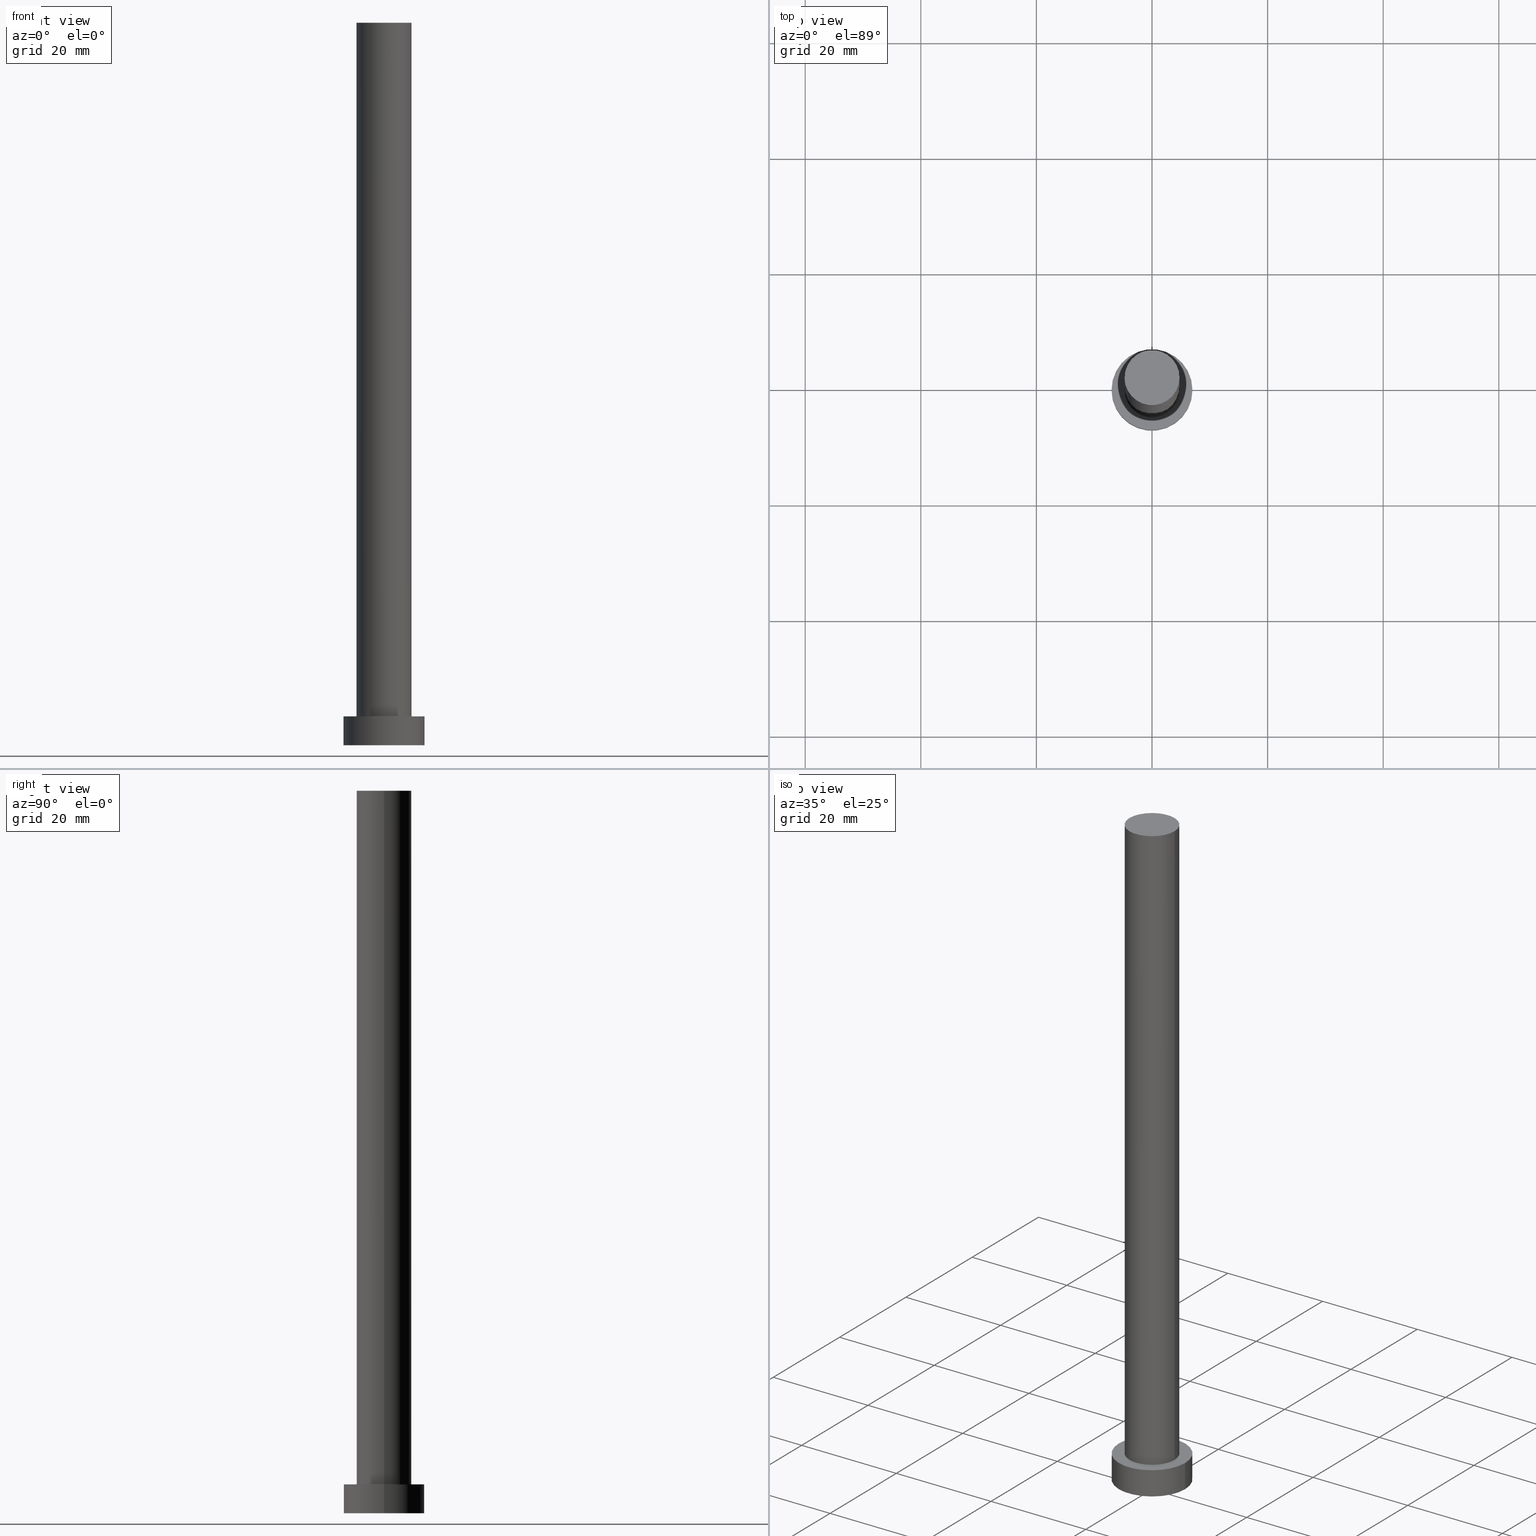
[diagram: canonical four-view strip — front | top / right | iso, engineering-drawing reading convention]
A machine part, canonical four-view strip (front | top / right | iso — engineering-drawing reading convention). The complete STEP part file that produces these views, byte-faithful:
ISO-10303-21;
HEADER;
FILE_DESCRIPTION (( 'STEP AP203' ),
    '1' );
FILE_NAME ('98ec.STEP',
    '2026-02-06T12:38:12',
    ( '' ),
    ( '' ),
    'SwSTEP 2.0',
    'SolidWorks 2019',
    '' );
FILE_SCHEMA (( 'CONFIG_CONTROL_DESIGN' ));
ENDSEC;

DATA;
#1 = CIRCLE ( 'NONE', #116, 7.000000000000000000 ) ;
#2 = DIRECTION ( 'NONE',  ( 0.000000000000000000, 0.000000000000000000, 1.000000000000000000 ) ) ;
#3 = PERSON_AND_ORGANIZATION ( #102, #83 ) ;
#4 = CYLINDRICAL_SURFACE ( 'NONE', #186, 4.750000000000000888 ) ;
#5 = PERSON_AND_ORGANIZATION ( #102, #83 ) ;
#6 = CC_DESIGN_APPROVAL ( #159, ( #8 ) ) ;
#7 = AXIS2_PLACEMENT_3D ( 'NONE', #196, #38, #137 ) ;
#8 = PRODUCT_DEFINITION_FORMATION_WITH_SPECIFIED_SOURCE ( 'LIBOVOLN�', '', #121, .NOT_KNOWN. ) ;
#9 = LOCAL_TIME ( 13, 38, 12.00000000000000000, #39 ) ;
#10 = ORIENTED_EDGE ( 'NONE', *, *, #77, .T. ) ;
#11 = SECURITY_CLASSIFICATION ( '', '', #78 ) ;
#12 = ORIENTED_EDGE ( 'NONE', *, *, #132, .F. ) ;
#13 = DIRECTION ( 'NONE',  ( -0.000000000000000000, -0.000000000000000000, -1.000000000000000000 ) ) ;
#14 = EDGE_LOOP ( 'NONE', ( #127, #221, #17, #163 ) ) ;
#15 = COORDINATED_UNIVERSAL_TIME_OFFSET ( 1, 0, .AHEAD. ) ;
#16 = EDGE_CURVE ( 'NONE', #227, #106, #125, .T. ) ;
#17 = ORIENTED_EDGE ( 'NONE', *, *, #43, .T. ) ;
#18 = FACE_OUTER_BOUND ( 'NONE', #166, .T. ) ;
#19 = PERSON_AND_ORGANIZATION ( #102, #83 ) ;
#20 = LOCAL_TIME ( 13, 38, 12.00000000000000000, #143 ) ;
#21 = DIRECTION ( 'NONE',  ( -1.000000000000000000, 0.000000000000000000, 0.000000000000000000 ) ) ;
#22 = DATE_AND_TIME ( #152, #231 ) ;
#23 = CARTESIAN_POINT ( 'NONE',  ( 7.000000000000000000, 8.572527594031473190E-16, 5.000000000000000000 ) ) ;
#24 = FACE_OUTER_BOUND ( 'NONE', #124, .T. ) ;
#25 = EDGE_CURVE ( 'NONE', #224, #106, #225, .T. ) ;
#26 = AXIS2_PLACEMENT_3D ( 'NONE', #36, #89, #85 ) ;
#27 = EDGE_LOOP ( 'NONE', ( #12, #177 ) ) ;
#28 = DIRECTION ( 'NONE',  ( -0.000000000000000000, -0.000000000000000000, -1.000000000000000000 ) ) ;
#29 = ORIENTED_EDGE ( 'NONE', *, *, #43, .F. ) ;
#30 = FACE_OUTER_BOUND ( 'NONE', #53, .T. ) ;
#31 = APPROVAL_STATUS ( 'not_yet_approved' ) ;
#32 = EDGE_CURVE ( 'NONE', #55, #198, #82, .T. ) ;
#33 = DIRECTION ( 'NONE',  ( 0.000000000000000000, 0.000000000000000000, 1.000000000000000000 ) ) ;
#34 = CALENDAR_DATE ( 2026, 6, 2 ) ;
#35 = ORIENTED_EDGE ( 'NONE', *, *, #195, .F. ) ;
#36 = CARTESIAN_POINT ( 'NONE',  ( 0.000000000000000000, 0.000000000000000000, 5.000000000000000000 ) ) ;
#37 = CARTESIAN_POINT ( 'NONE',  ( 0.000000000000000000, 0.000000000000000000, 125.0000000000000000 ) ) ;
#38 = DIRECTION ( 'NONE',  ( 0.000000000000000000, 0.000000000000000000, 1.000000000000000000 ) ) ;
#39 = COORDINATED_UNIVERSAL_TIME_OFFSET ( 1, 0, .AHEAD. ) ;
#40 = CARTESIAN_POINT ( 'NONE',  ( -7.000000000000000000, 0.000000000000000000, 5.000000000000000000 ) ) ;
#41 = APPROVAL_ROLE ( '' ) ;
#42 = CARTESIAN_POINT ( 'NONE',  ( 0.000000000000000000, 0.000000000000000000, 0.000000000000000000 ) ) ;
#43 = EDGE_CURVE ( 'NONE', #106, #227, #1, .T. ) ;
#44 = APPROVAL_DATE_TIME ( #154, #159 ) ;
#45 = ADVANCED_FACE ( 'NONE', ( #30 ), #129, .T. ) ;
#46 = CIRCLE ( 'NONE', #208, 7.000000000000000000 ) ;
#47 = AXIS2_PLACEMENT_3D ( 'NONE', #115, #96, #62 ) ;
#48 = PRODUCT_DEFINITION_SHAPE ( 'NONE', 'NONE',  #218 ) ;
#49 = DIRECTION ( 'NONE',  ( 1.000000000000000000, 0.000000000000000000, 0.000000000000000000 ) ) ;
#50 = AXIS2_PLACEMENT_3D ( 'NONE', #59, #2, #232 ) ;
#51 = DIRECTION ( 'NONE',  ( 0.000000000000000000, 0.000000000000000000, 1.000000000000000000 ) ) ;
#52 = APPROVAL_STATUS ( 'not_yet_approved' ) ;
#53 = EDGE_LOOP ( 'NONE', ( #161, #35, #67, #170 ) ) ;
#54 = PERSON_AND_ORGANIZATION_ROLE ( 'classification_officer' ) ;
#55 = VERTEX_POINT ( 'NONE', #134 ) ;
#56 = VECTOR ( 'NONE', #28, 1000.000000000000000 ) ;
#57 = CARTESIAN_POINT ( 'NONE',  ( 7.000000000000000000, 8.572527594031473190E-16, 5.000000000000000000 ) ) ;
#58 = EDGE_CURVE ( 'NONE', #55, #178, #110, .T. ) ;
#59 = CARTESIAN_POINT ( 'NONE',  ( 0.000000000000000000, 0.000000000000000000, 5.000000000000000000 ) ) ;
#60 = MECHANICAL_CONTEXT ( 'NONE', #215, 'mechanical' ) ;
#61 = APPLICATION_PROTOCOL_DEFINITION ( 'international standard', 'config_control_design', 1994, #126 ) ;
#62 = DIRECTION ( 'NONE',  ( 1.000000000000000000, 0.000000000000000000, -0.000000000000000000 ) ) ;
#63 = DIRECTION ( 'NONE',  ( -0.000000000000000000, -0.000000000000000000, -1.000000000000000000 ) ) ;
#64 = DATE_AND_TIME ( #130, #20 ) ;
#65 =( LENGTH_UNIT ( ) NAMED_UNIT ( * ) SI_UNIT ( .MILLI., .METRE. ) );
#66 = CYLINDRICAL_SURFACE ( 'NONE', #26, 7.000000000000000000 ) ;
#67 = ORIENTED_EDGE ( 'NONE', *, *, #207, .T. ) ;
#68 = ADVANCED_FACE ( 'NONE', ( #184 ), #66, .T. ) ;
#69 = DIRECTION ( 'NONE',  ( 1.000000000000000000, 0.000000000000000000, 0.000000000000000000 ) ) ;
#70 = DIRECTION ( 'NONE',  ( 0.000000000000000000, 0.000000000000000000, 1.000000000000000000 ) ) ;
#71 = VERTEX_POINT ( 'NONE', #252 ) ;
#72 = APPLICATION_PROTOCOL_DEFINITION ( 'international standard', 'config_control_design', 1994, #215 ) ;
#73 = DIRECTION ( 'NONE',  ( 0.000000000000000000, 0.000000000000000000, 1.000000000000000000 ) ) ;
#74 = COORDINATED_UNIVERSAL_TIME_OFFSET ( 1, 0, .AHEAD. ) ;
#75 = CARTESIAN_POINT ( 'NONE',  ( 0.000000000000000000, 0.000000000000000000, 125.0000000000000000 ) ) ;
#76 = CALENDAR_DATE ( 2026, 6, 2 ) ;
#77 = EDGE_CURVE ( 'NONE', #198, #55, #142, .T. ) ;
#78 = SECURITY_CLASSIFICATION_LEVEL ( 'unclassified' ) ;
#79 = CARTESIAN_POINT ( 'NONE',  ( -4.750000000000000888, 0.000000000000000000, 5.000000000000000000 ) ) ;
#80 = CIRCLE ( 'NONE', #50, 7.000000000000000000 ) ;
#81 = APPROVAL ( #173, 'NEUR�EN�' ) ;
#82 = CIRCLE ( 'NONE', #149, 4.750000000000000888 ) ;
#83 = ORGANIZATION ( 'NEUR�EN�', 'NEUR�EN�', '' ) ;
#84 = ORIENTED_EDGE ( 'NONE', *, *, #32, .T. ) ;
#85 = DIRECTION ( 'NONE',  ( -1.000000000000000000, 0.000000000000000000, 0.000000000000000000 ) ) ;
#86 = EDGE_LOOP ( 'NONE', ( #103, #123, #229, #131 ) ) ;
#87 = CARTESIAN_POINT ( 'NONE',  ( 0.000000000000000000, 0.000000000000000000, 5.000000000000000000 ) ) ;
#88 = DATE_AND_TIME ( #239, #220 ) ;
#89 = DIRECTION ( 'NONE',  ( -0.000000000000000000, -0.000000000000000000, -1.000000000000000000 ) ) ;
#90 = VECTOR ( 'NONE', #180, 1000.000000000000000 ) ;
#91 = AXIS2_PLACEMENT_3D ( 'NONE', #119, #192, #236 ) ;
#92 = CARTESIAN_POINT ( 'NONE',  ( 0.000000000000000000, 0.000000000000000000, 125.0000000000000000 ) ) ;
#93 = CARTESIAN_POINT ( 'NONE',  ( 0.000000000000000000, 0.000000000000000000, 125.0000000000000000 ) ) ;
#94 = DIRECTION ( 'NONE',  ( 1.000000000000000000, 0.000000000000000000, -0.000000000000000000 ) ) ;
#95 = PERSON_AND_ORGANIZATION_ROLE ( 'design_supplier' ) ;
#96 = DIRECTION ( 'NONE',  ( 0.000000000000000000, 0.000000000000000000, 1.000000000000000000 ) ) ;
#97 = EDGE_CURVE ( 'NONE', #224, #182, #46, .T. ) ;
#98 = PERSON_AND_ORGANIZATION ( #102, #83 ) ;
#99 = PLANE ( 'NONE',  #111 ) ;
#100 = CIRCLE ( 'NONE', #244, 4.750000000000000888 ) ;
#101 = PLANE ( 'NONE',  #91 ) ;
#102 = PERSON ( 'NEUR�EN�', 'NEUR�EN�', 'NEUR�EN�', ('NEUR�EN�'), ('NEUR�EN�'), ('NEUR�EN�') ) ;
#103 = ORIENTED_EDGE ( 'NONE', *, *, #167, .F. ) ;
#104 = VECTOR ( 'NONE', #209, 1000.000000000000000 ) ;
#105 = CC_DESIGN_PERSON_AND_ORGANIZATION_ASSIGNMENT ( #98, #165, ( #218 ) ) ;
#106 = VERTEX_POINT ( 'NONE', #147 ) ;
#107 = CARTESIAN_POINT ( 'NONE',  ( 0.000000000000000000, 0.000000000000000000, 0.000000000000000000 ) ) ;
#108 = CARTESIAN_POINT ( 'NONE',  ( -4.750000000000000888, 0.000000000000000000, 125.0000000000000000 ) ) ;
#109 = PERSON_AND_ORGANIZATION ( #102, #83 ) ;
#110 = LINE ( 'NONE', #108, #104 ) ;
#111 = AXIS2_PLACEMENT_3D ( 'NONE', #42, #189, #94 ) ;
#112 = ORIENTED_EDGE ( 'NONE', *, *, #16, .F. ) ;
#113 = CC_DESIGN_PERSON_AND_ORGANIZATION_ASSIGNMENT ( #211, #54, ( #11 ) ) ;
#114 = CARTESIAN_POINT ( 'NONE',  ( -7.000000000000000000, 0.000000000000000000, 5.000000000000000000 ) ) ;
#115 = CARTESIAN_POINT ( 'NONE',  ( 0.000000000000000000, 0.000000000000000000, 125.0000000000000000 ) ) ;
#116 = AXIS2_PLACEMENT_3D ( 'NONE', #203, #33, #255 ) ;
#117 = CC_DESIGN_DATE_AND_TIME_ASSIGNMENT ( #22, #204, ( #11 ) ) ;
#118 = FACE_OUTER_BOUND ( 'NONE', #86, .T. ) ;
#119 = CARTESIAN_POINT ( 'NONE',  ( 0.000000000000000000, 0.000000000000000000, 5.000000000000000000 ) ) ;
#120 = APPROVAL_DATE_TIME ( #64, #181 ) ;
#121 = PRODUCT ( '98ec', '98ec', '', ( #60 ) ) ;
#122 = PRODUCT_RELATED_PRODUCT_CATEGORY ( 'detail', '', ( #121 ) ) ;
#123 = ORIENTED_EDGE ( 'NONE', *, *, #32, .F. ) ;
#124 = EDGE_LOOP ( 'NONE', ( #84, #10 ) ) ;
#125 = CIRCLE ( 'NONE', #158, 7.000000000000000000 ) ;
#126 = APPLICATION_CONTEXT ( 'configuration controlled 3d designs of mechanical parts and assemblies' ) ;
#127 = ORIENTED_EDGE ( 'NONE', *, *, #97, .F. ) ;
#128 = APPROVAL_PERSON_ORGANIZATION ( #250, #181, #41 ) ;
#129 = CYLINDRICAL_SURFACE ( 'NONE', #251, 7.000000000000000000 ) ;
#130 = CALENDAR_DATE ( 2026, 6, 2 ) ;
#131 = ORIENTED_EDGE ( 'NONE', *, *, #132, .T. ) ;
#132 = EDGE_CURVE ( 'NONE', #178, #71, #100, .T. ) ;
#133 = ORIENTED_EDGE ( 'NONE', *, *, #167, .T. ) ;
#134 = CARTESIAN_POINT ( 'NONE',  ( -4.750000000000000888, 0.000000000000000000, 125.0000000000000000 ) ) ;
#135 = DIRECTION ( 'NONE',  ( -1.000000000000000000, 0.000000000000000000, 0.000000000000000000 ) ) ;
#136 = PERSON_AND_ORGANIZATION_ROLE ( 'design_owner' ) ;
#137 = DIRECTION ( 'NONE',  ( 1.000000000000000000, 0.000000000000000000, 0.000000000000000000 ) ) ;
#138 = FACE_OUTER_BOUND ( 'NONE', #228, .T. ) ;
#139 = APPROVAL_DATE_TIME ( #156, #81 ) ;
#140 = CARTESIAN_POINT ( 'NONE',  ( 4.750000000000000888, 5.817072295949928412E-16, 125.0000000000000000 ) ) ;
#141 = DIRECTION ( 'NONE',  ( 0.000000000000000000, 0.000000000000000000, 1.000000000000000000 ) ) ;
#142 = CIRCLE ( 'NONE', #237, 4.750000000000000888 ) ;
#143 = COORDINATED_UNIVERSAL_TIME_OFFSET ( 1, 0, .AHEAD. ) ;
#144 = CC_DESIGN_SECURITY_CLASSIFICATION ( #11, ( #8 ) ) ;
#145 = DESIGN_CONTEXT ( 'detailed design', #126, 'design' ) ;
#146 = CC_DESIGN_PERSON_AND_ORGANIZATION_ASSIGNMENT ( #5, #136, ( #121 ) ) ;
#147 = CARTESIAN_POINT ( 'NONE',  ( 7.000000000000000000, 8.572527594031473190E-16, 0.000000000000000000 ) ) ;
#148 = CARTESIAN_POINT ( 'NONE',  ( 0.000000000000000000, 0.000000000000000000, 5.000000000000000000 ) ) ;
#149 = AXIS2_PLACEMENT_3D ( 'NONE', #93, #51, #69 ) ;
#150 = CC_DESIGN_APPROVAL ( #81, ( #218 ) ) ;
#151 = LINE ( 'NONE', #40, #155 ) ;
#152 = CALENDAR_DATE ( 2026, 6, 2 ) ;
#153 = FACE_BOUND ( 'NONE', #27, .T. ) ;
#154 = DATE_AND_TIME ( #76, #179 ) ;
#155 = VECTOR ( 'NONE', #190, 1000.000000000000000 ) ;
#156 = DATE_AND_TIME ( #34, #9 ) ;
#157 = CC_DESIGN_PERSON_AND_ORGANIZATION_ASSIGNMENT ( #19, #95, ( #8 ) ) ;
#158 = AXIS2_PLACEMENT_3D ( 'NONE', #107, #187, #206 ) ;
#159 = APPROVAL ( #52, 'NEUR�EN�' ) ;
#160 = AXIS2_PLACEMENT_3D ( 'NONE', #238, #73, #233 ) ;
#161 = ORIENTED_EDGE ( 'NONE', *, *, #25, .F. ) ;
#162 = DIRECTION ( 'NONE',  ( 1.000000000000000000, 0.000000000000000000, 0.000000000000000000 ) ) ;
#163 = ORIENTED_EDGE ( 'NONE', *, *, #207, .F. ) ;
#164 = CARTESIAN_POINT ( 'NONE',  ( 4.750000000000000888, 5.817072295949928412E-16, 125.0000000000000000 ) ) ;
#165 = PERSON_AND_ORGANIZATION_ROLE ( 'creator' ) ;
#166 = EDGE_LOOP ( 'NONE', ( #112, #29 ) ) ;
#167 = EDGE_CURVE ( 'NONE', #198, #71, #199, .T. ) ;
#168 = APPROVAL_ROLE ( '' ) ;
#169 = DIRECTION ( 'NONE',  ( 0.000000000000000000, 0.000000000000000000, 1.000000000000000000 ) ) ;
#170 = ORIENTED_EDGE ( 'NONE', *, *, #16, .T. ) ;
#171 = ADVANCED_FACE ( 'NONE', ( #153, #210 ), #101, .T. ) ;
#172 = APPROVAL_PERSON_ORGANIZATION ( #193, #159, #168 ) ;
#173 = APPROVAL_STATUS ( 'not_yet_approved' ) ;
#174 = DIRECTION ( 'NONE',  ( -0.000000000000000000, -0.000000000000000000, -1.000000000000000000 ) ) ;
#175 =( NAMED_UNIT ( * ) SI_UNIT ( $, .STERADIAN. ) SOLID_ANGLE_UNIT ( ) );
#176 = ADVANCED_FACE ( 'NONE', ( #118 ), #4, .T. ) ;
#177 = ORIENTED_EDGE ( 'NONE', *, *, #200, .F. ) ;
#178 = VERTEX_POINT ( 'NONE', #79 ) ;
#179 = LOCAL_TIME ( 13, 38, 12.00000000000000000, #214 ) ;
#180 = DIRECTION ( 'NONE',  ( -0.000000000000000000, -0.000000000000000000, -1.000000000000000000 ) ) ;
#181 = APPROVAL ( #31, 'NEUR�EN�' ) ;
#182 = VERTEX_POINT ( 'NONE', #114 ) ;
#183 = DATE_TIME_ROLE ( 'creation_date' ) ;
#184 = FACE_OUTER_BOUND ( 'NONE', #14, .T. ) ;
#185 = SHAPE_DEFINITION_REPRESENTATION ( #48, #205 ) ;
#186 = AXIS2_PLACEMENT_3D ( 'NONE', #75, #63, #21 ) ;
#187 = DIRECTION ( 'NONE',  ( 0.000000000000000000, 0.000000000000000000, 1.000000000000000000 ) ) ;
#188 = ADVANCED_FACE ( 'NONE', ( #24 ), #212, .T. ) ;
#189 = DIRECTION ( 'NONE',  ( 0.000000000000000000, 0.000000000000000000, 1.000000000000000000 ) ) ;
#190 = DIRECTION ( 'NONE',  ( -0.000000000000000000, -0.000000000000000000, -1.000000000000000000 ) ) ;
#191 = MANIFOLD_SOLID_BREP ( 'P�idat vysunut�m3', #241 ) ;
#192 = DIRECTION ( 'NONE',  ( 0.000000000000000000, 0.000000000000000000, 1.000000000000000000 ) ) ;
#193 = PERSON_AND_ORGANIZATION ( #102, #83 ) ;
#194 = CYLINDRICAL_SURFACE ( 'NONE', #219, 4.750000000000000888 ) ;
#195 = EDGE_CURVE ( 'NONE', #182, #224, #80, .T. ) ;
#196 = CARTESIAN_POINT ( 'NONE',  ( 0.000000000000000000, 0.000000000000000000, 5.000000000000000000 ) ) ;
#197 = CC_DESIGN_DATE_AND_TIME_ASSIGNMENT ( #88, #183, ( #218 ) ) ;
#198 = VERTEX_POINT ( 'NONE', #140 ) ;
#199 = LINE ( 'NONE', #164, #56 ) ;
#200 = EDGE_CURVE ( 'NONE', #71, #178, #242, .T. ) ;
#201 = ORIENTED_EDGE ( 'NONE', *, *, #200, .T. ) ;
#202 = DIRECTION ( 'NONE',  ( -1.000000000000000000, 0.000000000000000000, 0.000000000000000000 ) ) ;
#203 = CARTESIAN_POINT ( 'NONE',  ( 0.000000000000000000, 0.000000000000000000, 0.000000000000000000 ) ) ;
#204 = DATE_TIME_ROLE ( 'classification_date' ) ;
#205 = ADVANCED_BREP_SHAPE_REPRESENTATION ( '98ec', ( #191, #160 ), #245 ) ;
#206 = DIRECTION ( 'NONE',  ( 1.000000000000000000, 0.000000000000000000, 0.000000000000000000 ) ) ;
#207 = EDGE_CURVE ( 'NONE', #182, #227, #151, .T. ) ;
#208 = AXIS2_PLACEMENT_3D ( 'NONE', #254, #70, #162 ) ;
#209 = DIRECTION ( 'NONE',  ( -0.000000000000000000, -0.000000000000000000, -1.000000000000000000 ) ) ;
#210 = FACE_OUTER_BOUND ( 'NONE', #247, .T. ) ;
#211 = PERSON_AND_ORGANIZATION ( #102, #83 ) ;
#212 = PLANE ( 'NONE',  #47 ) ;
#213 =( NAMED_UNIT ( * ) PLANE_ANGLE_UNIT ( ) SI_UNIT ( $, .RADIAN. ) );
#214 = COORDINATED_UNIVERSAL_TIME_OFFSET ( 1, 0, .AHEAD. ) ;
#215 = APPLICATION_CONTEXT ( 'configuration controlled 3d designs of mechanical parts and assemblies' ) ;
#216 = CARTESIAN_POINT ( 'NONE',  ( -7.000000000000000000, 0.000000000000000000, 0.000000000000000000 ) ) ;
#217 = ADVANCED_FACE ( 'NONE', ( #138 ), #194, .T. ) ;
#218 = PRODUCT_DEFINITION ( 'NEZN�M�', '', #8, #145 ) ;
#219 = AXIS2_PLACEMENT_3D ( 'NONE', #37, #174, #135 ) ;
#220 = LOCAL_TIME ( 13, 38, 12.00000000000000000, #15 ) ;
#221 = ORIENTED_EDGE ( 'NONE', *, *, #25, .T. ) ;
#222 = ORIENTED_EDGE ( 'NONE', *, *, #195, .T. ) ;
#223 = DIRECTION ( 'NONE',  ( 1.000000000000000000, 0.000000000000000000, 0.000000000000000000 ) ) ;
#224 = VERTEX_POINT ( 'NONE', #23 ) ;
#225 = LINE ( 'NONE', #57, #90 ) ;
#226 = CC_DESIGN_APPROVAL ( #181, ( #11 ) ) ;
#227 = VERTEX_POINT ( 'NONE', #216 ) ;
#228 = EDGE_LOOP ( 'NONE', ( #248, #133, #201, #249 ) ) ;
#229 = ORIENTED_EDGE ( 'NONE', *, *, #58, .T. ) ;
#230 = APPROVAL_PERSON_ORGANIZATION ( #109, #81, #234 ) ;
#231 = LOCAL_TIME ( 13, 38, 12.00000000000000000, #74 ) ;
#232 = DIRECTION ( 'NONE',  ( 1.000000000000000000, 0.000000000000000000, 0.000000000000000000 ) ) ;
#233 = DIRECTION ( 'NONE',  ( 1.000000000000000000, 0.000000000000000000, 0.000000000000000000 ) ) ;
#234 = APPROVAL_ROLE ( '' ) ;
#235 = CC_DESIGN_PERSON_AND_ORGANIZATION_ASSIGNMENT ( #3, #253, ( #8 ) ) ;
#236 = DIRECTION ( 'NONE',  ( 1.000000000000000000, 0.000000000000000000, -0.000000000000000000 ) ) ;
#237 = AXIS2_PLACEMENT_3D ( 'NONE', #92, #169, #49 ) ;
#238 = CARTESIAN_POINT ( 'NONE',  ( 0.000000000000000000, 0.000000000000000000, 0.000000000000000000 ) ) ;
#239 = CALENDAR_DATE ( 2026, 6, 2 ) ;
#240 = ADVANCED_FACE ( 'NONE', ( #18 ), #99, .F. ) ;
#241 = CLOSED_SHELL ( 'NONE', ( #217, #68, #45, #171, #240, #176, #188 ) ) ;
#242 = CIRCLE ( 'NONE', #7, 4.750000000000000888 ) ;
#243 = UNCERTAINTY_MEASURE_WITH_UNIT (LENGTH_MEASURE( 1.000000000000000082E-05 ), #65, 'distance_accuracy_value', 'NONE');
#244 = AXIS2_PLACEMENT_3D ( 'NONE', #87, #141, #223 ) ;
#245 =( GEOMETRIC_REPRESENTATION_CONTEXT ( 3 ) GLOBAL_UNCERTAINTY_ASSIGNED_CONTEXT ( ( #243 ) ) GLOBAL_UNIT_ASSIGNED_CONTEXT ( ( #65, #213, #175 ) ) REPRESENTATION_CONTEXT ( 'NONE', 'WORKASPACE' ) );
#246 = ORIENTED_EDGE ( 'NONE', *, *, #97, .T. ) ;
#247 = EDGE_LOOP ( 'NONE', ( #222, #246 ) ) ;
#248 = ORIENTED_EDGE ( 'NONE', *, *, #77, .F. ) ;
#249 = ORIENTED_EDGE ( 'NONE', *, *, #58, .F. ) ;
#250 = PERSON_AND_ORGANIZATION ( #102, #83 ) ;
#251 = AXIS2_PLACEMENT_3D ( 'NONE', #148, #13, #202 ) ;
#252 = CARTESIAN_POINT ( 'NONE',  ( 4.750000000000000888, 5.817072295949928412E-16, 5.000000000000000000 ) ) ;
#253 = PERSON_AND_ORGANIZATION_ROLE ( 'creator' ) ;
#254 = CARTESIAN_POINT ( 'NONE',  ( 0.000000000000000000, 0.000000000000000000, 5.000000000000000000 ) ) ;
#255 = DIRECTION ( 'NONE',  ( 1.000000000000000000, 0.000000000000000000, 0.000000000000000000 ) ) ;
ENDSEC;
END-ISO-10303-21;
